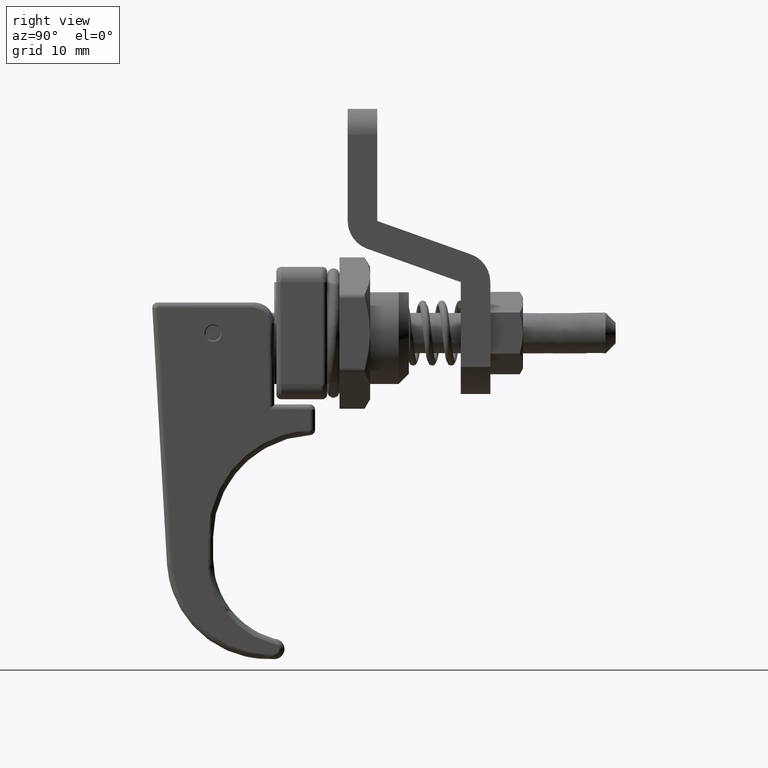
[diagram: clean part render]
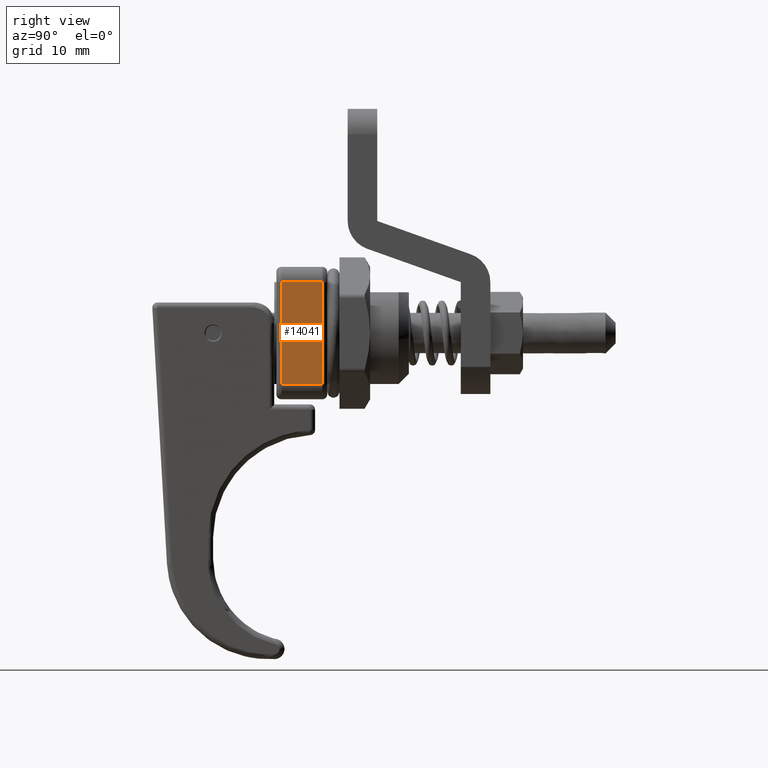
[diagram: same view with one face highlighted and labeled with its STEP entity id]
A machine part, right view. The second image highlights one B-rep face of the part: STEP entity #14041.
In plain terms, the highlighted face is a freeform B-spline surface patch.
Its self-contained STEP definition (entity closure, byte-faithful):
#13025=CARTESIAN_POINT('',(-0.500000000000000,-6.500000000000200,-5.000100000000001));
#13026=VERTEX_POINT('',#13025);
#13140=CARTESIAN_POINT('',(-0.500000000000000,-6.500000000000200,5.0));
#13141=VERTEX_POINT('',#13140);
#13153=CARTESIAN_POINT('',(-0.500000000000000,-6.500000000000200,-5.000100000000001));
#13154=CARTESIAN_POINT('',(-0.500000000000000,-6.500000000000200,5.0));
#13155=QUASI_UNIFORM_CURVE('',1,(#13153,#13154),.UNSPECIFIED.,.F.,.U.);
#13156=EDGE_CURVE('',#13026,#13141,#13155,.T.);
#13667=CARTESIAN_POINT('',(-4.500000000000000,-6.500000000000200,5.0));
#13668=VERTEX_POINT('',#13667);
#13767=CARTESIAN_POINT('',(-4.500000000000000,-6.500000000000200,-5.000100000000001));
#13768=VERTEX_POINT('',#13767);
#13780=CARTESIAN_POINT('',(-4.500000000000000,-6.500000000000200,5.0));
#13781=CARTESIAN_POINT('',(-4.500000000000000,-6.500000000000200,-5.000100000000001));
#13782=QUASI_UNIFORM_CURVE('',1,(#13780,#13781),.UNSPECIFIED.,.F.,.U.);
#13783=EDGE_CURVE('',#13668,#13768,#13782,.T.);
#13855=CARTESIAN_POINT('',(-4.500000000000000,-6.500000000000200,-5.000100000000001));
#13856=CARTESIAN_POINT('',(-0.500000000000000,-6.500000000000200,-5.000100000000001));
#13857=QUASI_UNIFORM_CURVE('',1,(#13855,#13856),.UNSPECIFIED.,.F.,.U.);
#13858=EDGE_CURVE('',#13768,#13026,#13857,.T.);
#13890=CARTESIAN_POINT('',(-0.500000000000000,-6.500000000000200,5.0));
#13891=CARTESIAN_POINT('',(-4.500000000000000,-6.500000000000200,5.0));
#13892=QUASI_UNIFORM_CURVE('',1,(#13890,#13891),.UNSPECIFIED.,.F.,.U.);
#13893=EDGE_CURVE('',#13141,#13668,#13892,.T.);
#14030=CARTESIAN_POINT('',(-4.699799992247224,-6.500000000000200,5.499504975617866));
#14031=CARTESIAN_POINT('',(-0.300199900464416,-6.500000000000200,5.499504975617866));
#14032=CARTESIAN_POINT('',(-4.699799992247224,-6.500000000000200,-5.499605243841451));
#14033=CARTESIAN_POINT('',(-0.300199900464416,-6.500000000000200,-5.499605243841451));
#14034=B_SPLINE_SURFACE_WITH_KNOTS('',1,1,((#14030,#14032),(#14031,#14033)),.UNSPECIFIED.,.F.,.F.,.U.,(2,2),(2,2),(0.0,4.399600091782808),(0.0,10.999110219459320),.UNSPECIFIED.);
#14035=ORIENTED_EDGE('',*,*,#13893,.T.);
#14036=ORIENTED_EDGE('',*,*,#13783,.T.);
#14037=ORIENTED_EDGE('',*,*,#13858,.T.);
#14038=ORIENTED_EDGE('',*,*,#13156,.T.);
#14039=EDGE_LOOP('',(#14035,#14036,#14037,#14038));
#14040=FACE_OUTER_BOUND('',#14039,.T.);
#14041=ADVANCED_FACE('',(#14040),#14034,.F.);